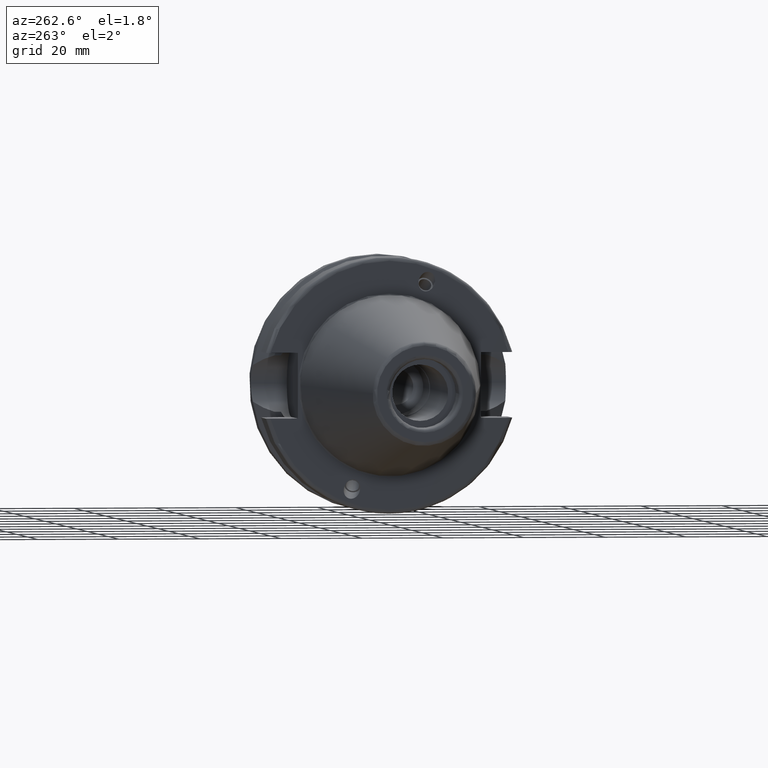
[diagram: clean part render]
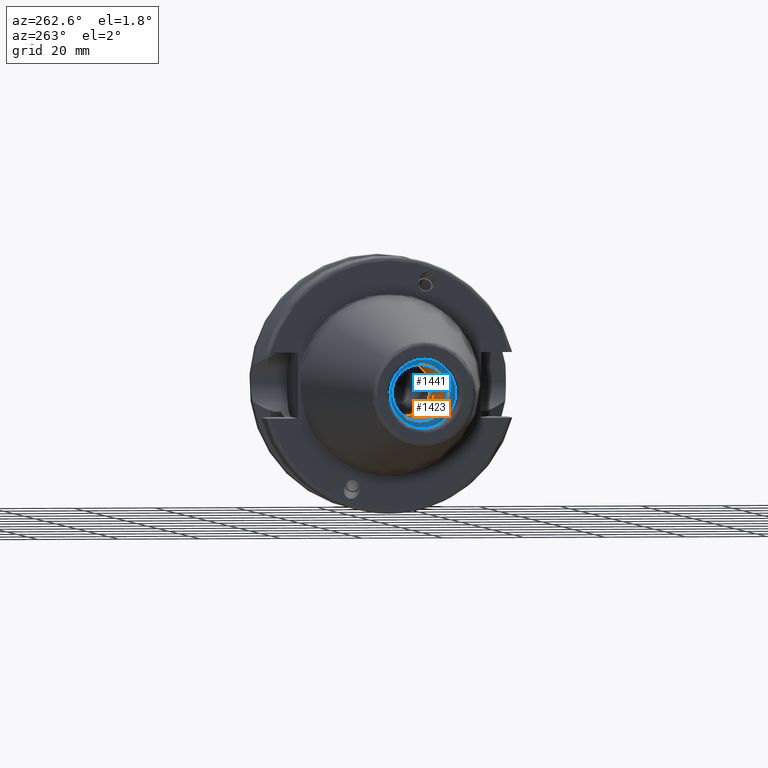
[diagram: same view with the hole feature highlighted: cylindrical wall and planar end face, labeled with their STEP entity ids]
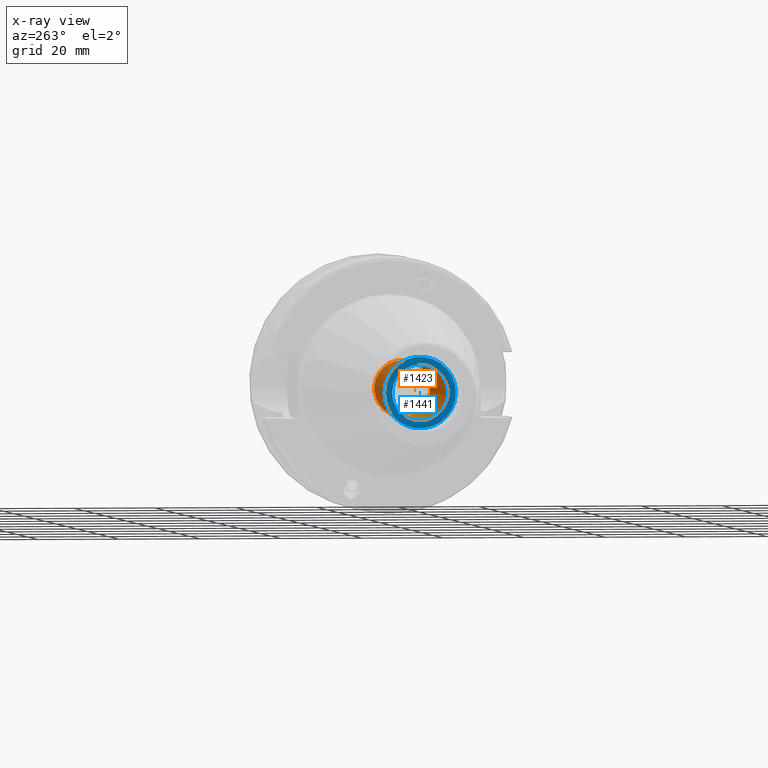
[diagram: x-ray of the same camera — body ghosted, the hole faces saturated]
A machine part, auxiliary view. The highlighted faces form one hole feature of diameter 13.835 mm: the cylindrical wall (entity #1423, orange) and its adjacent planar end face (entity #1441, blue) — they share a circular edge in the B-rep.
The next image is the same camera in x-ray (body ghosted, the hole faces saturated) — the bore reads through the body.
Wall:
#159=FACE_OUTER_BOUND('',#256,.T.);
#256=EDGE_LOOP('',(#1139,#1140,#1141,#1142));
#358=LINE('',#2549,#429);
#429=VECTOR('',#1976,6.9175);
#523=CIRCLE('',#1608,6.9175);
#524=CIRCLE('',#1610,6.9175);
#634=VERTEX_POINT('',#2543);
#635=VERTEX_POINT('',#2547);
#813=EDGE_CURVE('',#634,#634,#523,.T.);
#815=EDGE_CURVE('',#635,#635,#524,.T.);
#816=EDGE_CURVE('',#635,#634,#358,.T.);
#1139=ORIENTED_EDGE('',*,*,#815,.F.);
#1140=ORIENTED_EDGE('',*,*,#816,.T.);
#1141=ORIENTED_EDGE('',*,*,#813,.F.);
#1142=ORIENTED_EDGE('',*,*,#816,.F.);
#1361=CYLINDRICAL_SURFACE('',#1609,6.9175);
#1423=ADVANCED_FACE('',(#159),#1361,.F.);
#1608=AXIS2_PLACEMENT_3D('',#2544,#1969,#1970);
#1609=AXIS2_PLACEMENT_3D('',#2546,#1972,#1973);
#1610=AXIS2_PLACEMENT_3D('',#2548,#1974,#1975);
#1969=DIRECTION('center_axis',(-1.,0.,0.));
#1970=DIRECTION('ref_axis',(0.,0.,1.));
#1972=DIRECTION('center_axis',(-1.,0.,0.));
#1973=DIRECTION('ref_axis',(0.,0.,1.));
#1974=DIRECTION('center_axis',(1.,0.,0.));
#1975=DIRECTION('ref_axis',(0.,0.,1.));
#1976=DIRECTION('',(1.,0.,0.));
#2543=CARTESIAN_POINT('',(-22.4,-8.47149423310182E-16,-6.9175));
#2544=CARTESIAN_POINT('Origin',(-22.4,0.,0.));
#2546=CARTESIAN_POINT('Origin',(-43.9,0.,0.));
#2547=CARTESIAN_POINT('',(-56.4,8.47149423310182E-16,-6.9175));
#2548=CARTESIAN_POINT('Origin',(-56.4,0.,0.));
#2549=CARTESIAN_POINT('',(-43.9,-8.47149423310182E-16,-6.9175));
End face:
#53=PLANE('',#1642);
#102=FACE_BOUND('',#276,.T.);
#177=FACE_OUTER_BOUND('',#275,.T.);
#275=EDGE_LOOP('',(#1249));
#276=EDGE_LOOP('',(#1250));
#524=CIRCLE('',#1610,6.9175);
#539=CIRCLE('',#1643,8.8);
#635=VERTEX_POINT('',#2547);
#683=VERTEX_POINT('',#2782);
#815=EDGE_CURVE('',#635,#635,#524,.T.);
#881=EDGE_CURVE('',#683,#683,#539,.T.);
#1249=ORIENTED_EDGE('',*,*,#881,.F.);
#1250=ORIENTED_EDGE('',*,*,#815,.T.);
#1441=ADVANCED_FACE('',(#177,#102),#53,.T.);
#1610=AXIS2_PLACEMENT_3D('',#2548,#1974,#1975);
#1642=AXIS2_PLACEMENT_3D('',#2781,#2070,#2071);
#1643=AXIS2_PLACEMENT_3D('',#2783,#2072,#2073);
#1974=DIRECTION('center_axis',(1.,0.,0.));
#1975=DIRECTION('ref_axis',(0.,0.,1.));
#2070=DIRECTION('center_axis',(-1.,0.,0.));
#2071=DIRECTION('ref_axis',(0.,0.,1.));
#2072=DIRECTION('center_axis',(1.,0.,0.));
#2073=DIRECTION('ref_axis',(0.,0.,-1.));
#2547=CARTESIAN_POINT('',(-56.4,8.47149423310182E-16,-6.9175));
#2548=CARTESIAN_POINT('Origin',(-56.4,0.,0.));
#2781=CARTESIAN_POINT('Origin',(-56.4,8.8,0.));
#2782=CARTESIAN_POINT('',(-56.4,-8.8,-1.07768918324967E-15));
#2783=CARTESIAN_POINT('Origin',(-56.4,0.,0.));